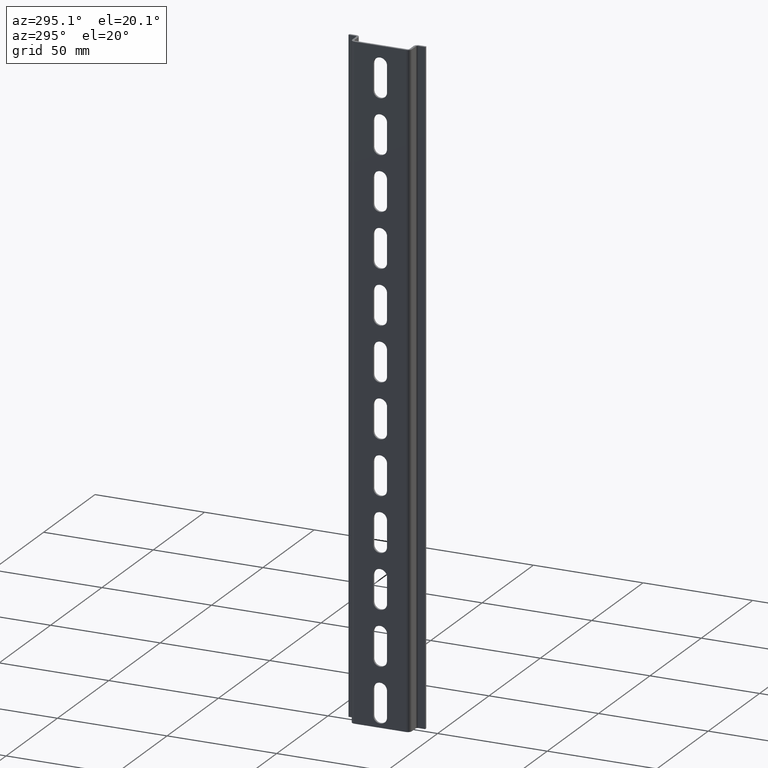
[diagram: clean part render]
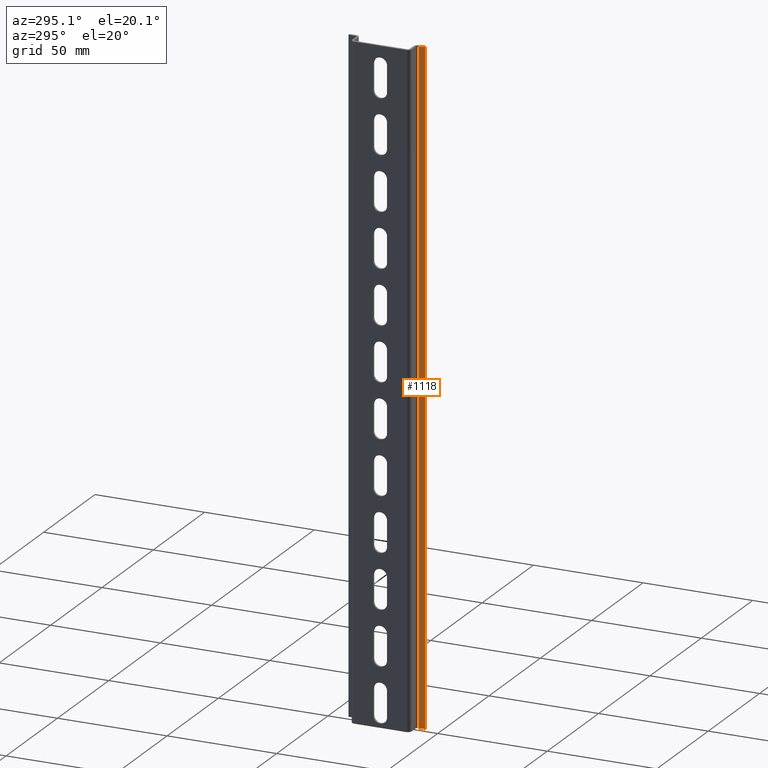
[diagram: same view with one face highlighted and labeled with its STEP entity id]
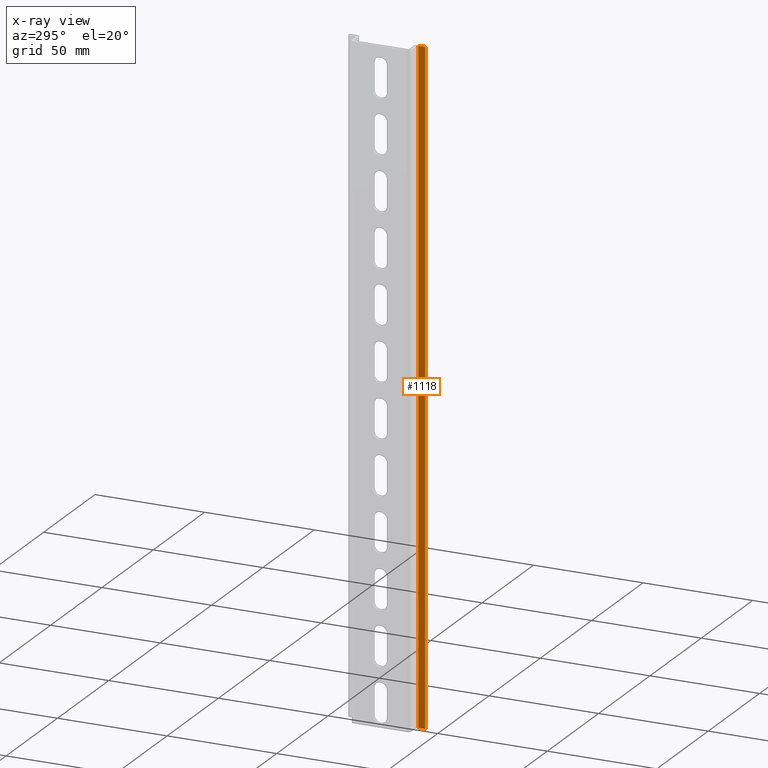
[diagram: x-ray of the same camera — body ghosted, the highlighted face saturated]
A machine part, auxiliary view. The second image highlights one B-rep face of the part: STEP entity #1118.
The next image is the same camera in x-ray: the body ghosted, the highlighted face saturated — about 0% of this face is hidden behind the body in this view.
In plain terms, the highlighted planar face has unit normal (1, -0, 0).
Its self-contained STEP definition (entity closure, byte-faithful):
#90 = VERTEX_POINT ( 'NONE', #214 ) ;
#171 = VERTEX_POINT ( 'NONE', #333 ) ;
#181 = VERTEX_POINT ( 'NONE', #356 ) ;
#191 = VERTEX_POINT ( 'NONE', #336 ) ;
#214 = CARTESIAN_POINT ( 'NONE',  ( 1391.325919215657900, 454.7188036583252100, 300.0000000000000000 ) ) ;
#333 = CARTESIAN_POINT ( 'NONE',  ( 1391.325919215657700, 451.6188036583252500, 300.0000000000000000 ) ) ;
#336 = CARTESIAN_POINT ( 'NONE',  ( 1391.325919215657900, 454.7188036583252100, 0.0000000000000000000 ) ) ;
#356 = CARTESIAN_POINT ( 'NONE',  ( 1391.325919215657700, 451.6188036583252500, 0.0000000000000000000 ) ) ;
#362 = CARTESIAN_POINT ( 'NONE',  ( 1391.325919215657900, 441.1357542965276400, 0.0000000000000000000 ) ) ;
#366 = DIRECTION ( 'NONE',  ( 0.0000000000000000000, -1.000000000000000000, -0.0000000000000000000 ) ) ;
#399 = LINE ( 'NONE', #362, #2738 ) ;
#418 = EDGE_LOOP ( 'NONE', ( #786, #768, #858, #761 ) ) ;
#761 = ORIENTED_EDGE ( 'NONE', *, *, #1400, .F. ) ;
#768 = ORIENTED_EDGE ( 'NONE', *, *, #976, .T. ) ;
#786 = ORIENTED_EDGE ( 'NONE', *, *, #1317, .F. ) ;
#858 = ORIENTED_EDGE ( 'NONE', *, *, #1304, .F. ) ;
#976 = EDGE_CURVE ( 'NONE', #191, #181, #399, .T. ) ;
#1118 = ADVANCED_FACE ( 'NONE', ( #1646 ), #1659, .F. ) ;
#1174 = DIRECTION ( 'NONE',  ( 0.0000000000000000000, -1.000000000000000000, -0.0000000000000000000 ) ) ;
#1177 = LINE ( 'NONE', #1197, #2711 ) ;
#1197 = CARTESIAN_POINT ( 'NONE',  ( 1391.325919215657900, 441.1357542965276400, 300.0000000000000000 ) ) ;
#1304 = EDGE_CURVE ( 'NONE', #171, #181, #1891, .T. ) ;
#1317 = EDGE_CURVE ( 'NONE', #191, #90, #1961, .T. ) ;
#1400 = EDGE_CURVE ( 'NONE', #90, #171, #1177, .T. ) ;
#1641 = DIRECTION ( 'NONE',  ( 1.000000000000000000, -0.0000000000000000000, 0.0000000000000000000 ) ) ;
#1646 = FACE_OUTER_BOUND ( 'NONE', #418, .T. ) ;
#1651 = DIRECTION ( 'NONE',  ( 0.0000000000000000000, 0.0000000000000000000, -1.000000000000000000 ) ) ;
#1654 = CARTESIAN_POINT ( 'NONE',  ( 1391.325919215657900, 441.1357542965276400, 300.0000000000000000 ) ) ;
#1659 = PLANE ( 'NONE',  #2466 ) ;
#1887 = CARTESIAN_POINT ( 'NONE',  ( 1391.325919215657900, 451.6188036583252500, 300.0000000000000000 ) ) ;
#1890 = DIRECTION ( 'NONE',  ( 0.0000000000000000000, 0.0000000000000000000, -1.000000000000000000 ) ) ;
#1891 = LINE ( 'NONE', #1887, #2550 ) ;
#1927 = CARTESIAN_POINT ( 'NONE',  ( 1391.325919215657900, 454.7188036583252100, 300.0000000000000000 ) ) ;
#1928 = DIRECTION ( 'NONE',  ( -0.0000000000000000000, -0.0000000000000000000, 1.000000000000000000 ) ) ;
#1961 = LINE ( 'NONE', #1927, #2588 ) ;
#2466 = AXIS2_PLACEMENT_3D ( 'NONE', #1654, #1641, #1651 ) ;
#2550 = VECTOR ( 'NONE', #1890, 1000.000000000000000 ) ;
#2588 = VECTOR ( 'NONE', #1928, 1000.000000000000000 ) ;
#2711 = VECTOR ( 'NONE', #1174, 1000.000000000000000 ) ;
#2738 = VECTOR ( 'NONE', #366, 1000.000000000000000 ) ;